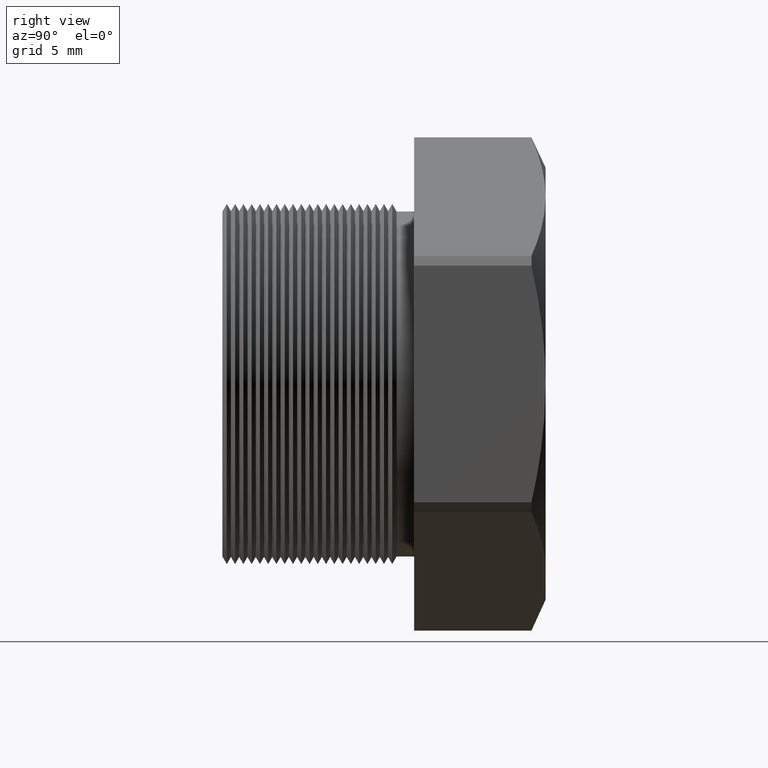
[diagram: clean part render]
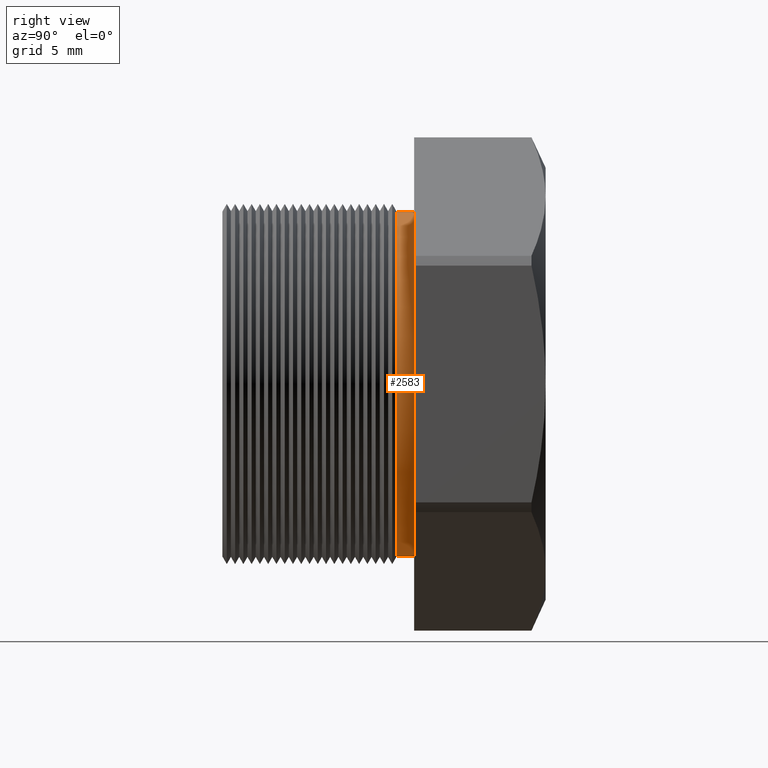
[diagram: same view with one face highlighted and labeled with its STEP entity id]
A machine part, right view. The second image highlights one B-rep face of the part: STEP entity #2583.
In plain terms, the highlighted cylindrical surface (partial cylindrical patch) has radius 8.001 mm, axis along (-0, -1, -0).
Its self-contained STEP definition (entity closure, byte-faithful):
#2481 = EDGE_CURVE ( 'NONE', #2482, #2483, #7261, .T. ) ;
#2482 = VERTEX_POINT ( 'NONE', #7256 ) ;
#2483 = VERTEX_POINT ( 'NONE', #7255 ) ;
#2557 = EDGE_CURVE ( 'NONE', #2558, #2559, #7434, .T. ) ;
#2558 = VERTEX_POINT ( 'NONE', #7424 ) ;
#2559 = VERTEX_POINT ( 'NONE', #7423 ) ;
#2560 = ORIENTED_EDGE ( 'NONE', *, *, #2561, .T. ) ;
#2561 = EDGE_CURVE ( 'NONE', #2559, #2483, #7422, .T. ) ;
#2562 = ORIENTED_EDGE ( 'NONE', *, *, #2481, .F. ) ;
#2563 = ORIENTED_EDGE ( 'NONE', *, *, #2564, .F. ) ;
#2564 = EDGE_CURVE ( 'NONE', #2558, #2482, #7418, .T. ) ;
#2583 = ADVANCED_FACE ( 'NONE', ( #7444 ), #7502, .T. ) ;
#2584 = EDGE_LOOP ( 'NONE', ( #2585, #2560, #2562, #2563 ) ) ;
#2585 = ORIENTED_EDGE ( 'NONE', *, *, #2557, .T. ) ;
#7255 = CARTESIAN_POINT ( 'NONE',  ( 3.857637417314162700E-017, 0.1355072448100088900, 0.3150000000000000000 ) ) ;
#7256 = CARTESIAN_POINT ( 'NONE',  ( 0.0000000000000000000, 0.1355072448100088900, -0.3150000000000000000 ) ) ;
#7257 = DIRECTION ( 'NONE',  ( 0.0000000000000000000, 0.0000000000000000000, -1.000000000000000000 ) ) ;
#7258 = DIRECTION ( 'NONE',  ( 0.0000000000000000000, -1.000000000000000000, 0.0000000000000000000 ) ) ;
#7259 = CARTESIAN_POINT ( 'NONE',  ( 0.0000000000000000000, 0.1355072448100088900, 0.0000000000000000000 ) ) ;
#7260 = AXIS2_PLACEMENT_3D ( 'NONE', #7259, #7258, #7257 ) ;
#7261 = CIRCLE ( 'NONE', #7260, 0.3150000000000000000 ) ;
#7415 = DIRECTION ( 'NONE',  ( -0.0000000000000000000, -1.000000000000000000, -0.0000000000000000000 ) ) ;
#7416 = VECTOR ( 'NONE', #7415, 39.37007874015748100 ) ;
#7417 = CARTESIAN_POINT ( 'NONE',  ( 0.0000000000000000000, 0.0000000000000000000, -0.3150000000000000000 ) ) ;
#7418 = LINE ( 'NONE', #7417, #7416 ) ;
#7419 = DIRECTION ( 'NONE',  ( -0.0000000000000000000, -1.000000000000000000, -0.0000000000000000000 ) ) ;
#7420 = VECTOR ( 'NONE', #7419, 39.37007874015748100 ) ;
#7421 = CARTESIAN_POINT ( 'NONE',  ( 3.857637417314162700E-017, 0.0000000000000000000, 0.3150000000000000000 ) ) ;
#7422 = LINE ( 'NONE', #7421, #7420 ) ;
#7423 = CARTESIAN_POINT ( 'NONE',  ( 3.857637417314162700E-017, 0.1675548905829479500, 0.3150000000000000000 ) ) ;
#7424 = CARTESIAN_POINT ( 'NONE',  ( 0.0000000000000000000, 0.1675548905829479500, -0.3150000000000000000 ) ) ;
#7425 = DIRECTION ( 'NONE',  ( 0.0000000000000000000, 0.0000000000000000000, -1.000000000000000000 ) ) ;
#7426 = DIRECTION ( 'NONE',  ( -0.0000000000000000000, -1.000000000000000000, -0.0000000000000000000 ) ) ;
#7427 = CARTESIAN_POINT ( 'NONE',  ( 0.0000000000000000000, 0.1675548905829479500, 0.0000000000000000000 ) ) ;
#7428 = AXIS2_PLACEMENT_3D ( 'NONE', #7427, #7426, #7425 ) ;
#7434 = CIRCLE ( 'NONE', #7428, 0.3150000000000000000 ) ;
#7444 = FACE_OUTER_BOUND ( 'NONE', #2584, .T. ) ;
#7498 = DIRECTION ( 'NONE',  ( 0.0000000000000000000, 0.0000000000000000000, -1.000000000000000000 ) ) ;
#7499 = DIRECTION ( 'NONE',  ( -0.0000000000000000000, -1.000000000000000000, -0.0000000000000000000 ) ) ;
#7500 = CARTESIAN_POINT ( 'NONE',  ( 0.0000000000000000000, 0.0000000000000000000, 0.0000000000000000000 ) ) ;
#7501 = AXIS2_PLACEMENT_3D ( 'NONE', #7500, #7499, #7498 ) ;
#7502 = CYLINDRICAL_SURFACE ( 'NONE', #7501, 0.3150000000000000000 ) ;